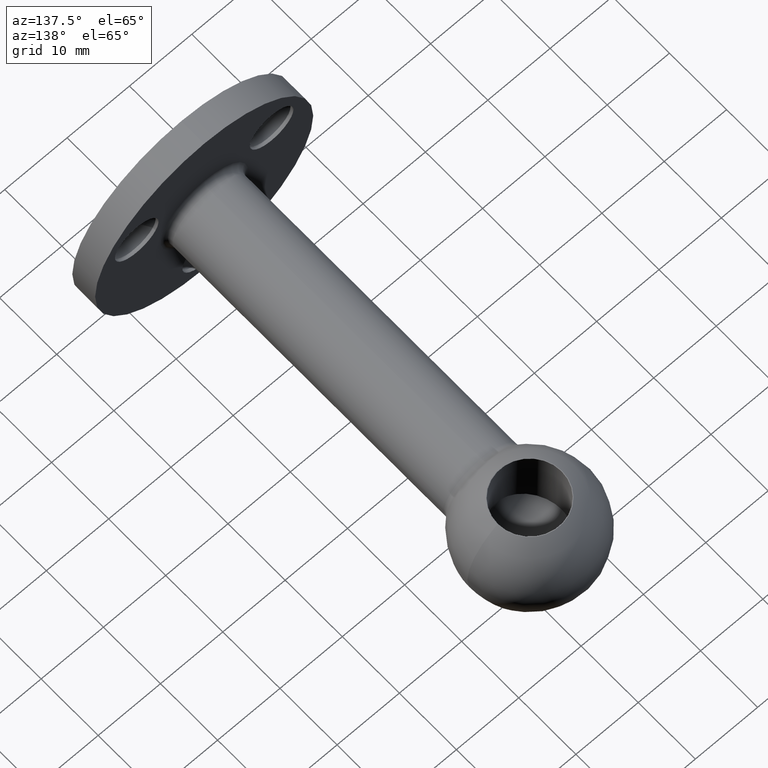
[diagram: clean part render]
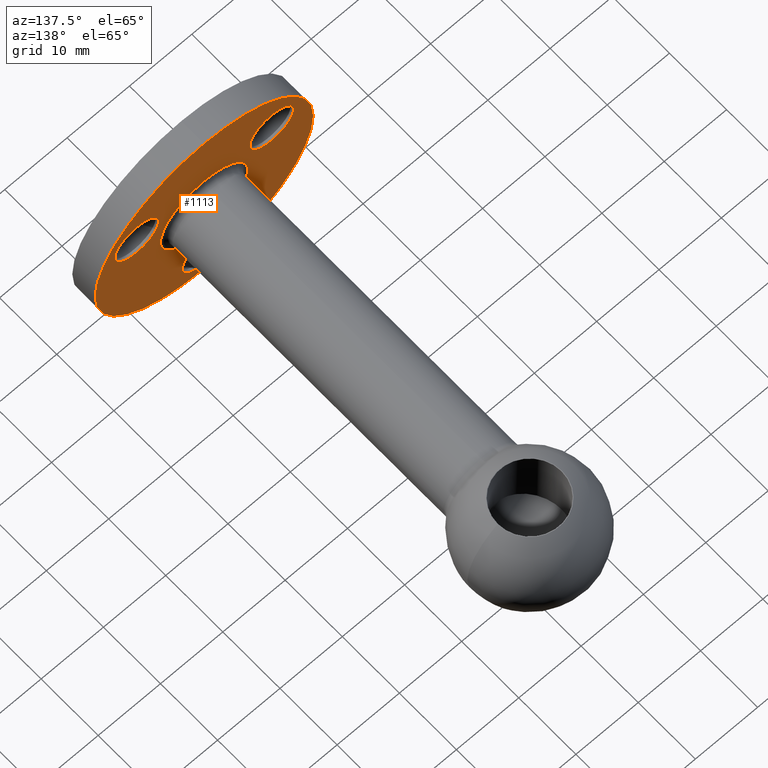
[diagram: same view with one face highlighted and labeled with its STEP entity id]
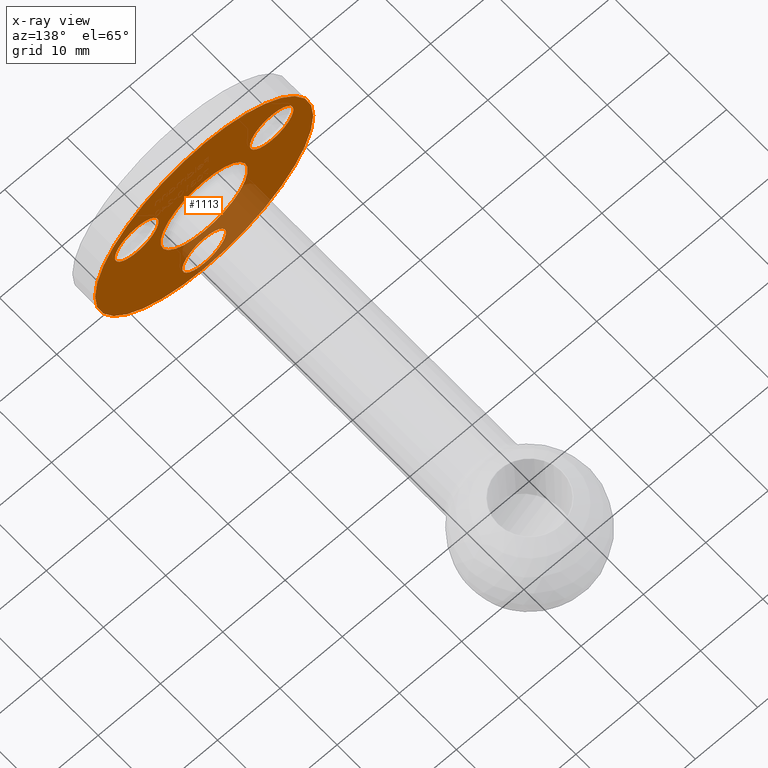
[diagram: x-ray of the same camera — body ghosted, the highlighted face saturated]
A machine part, auxiliary view. The second image highlights one B-rep face of the part: STEP entity #1113.
The next image is the same camera in x-ray: the body ghosted, the highlighted face saturated — about 14% of this face is hidden behind the body in this view.
In plain terms, the highlighted planar face has unit normal (0, 1, 0).
Its self-contained STEP definition (entity closure, byte-faithful):
#95 = EDGE_LOOP ( 'NONE', ( #10407 ) ) ;
#106 = CIRCLE ( 'NONE', #5475, 3.499999999999999556 ) ;
#228 = VERTEX_POINT ( 'NONE', #3444 ) ;
#316 = DIRECTION ( 'NONE',  ( 0.000000000000000000, 0.000000000000000000, 1.000000000000000000 ) ) ;
#371 = AXIS2_PLACEMENT_3D ( 'NONE', #4192, #2231, #9931 ) ;
#821 = CARTESIAN_POINT ( 'NONE',  ( 0.000000000000000000, 4.000000000000000000, 0.000000000000000000 ) ) ;
#1113 = ADVANCED_FACE ( 'NONE', ( #5630, #4267, #5180, #9378, #3681 ), #7183, .T. ) ;
#1514 = DIRECTION ( 'NONE',  ( 0.000000000000000000, 1.000000000000000000, 0.000000000000000000 ) ) ;
#1600 = DIRECTION ( 'NONE',  ( 0.000000000000000000, 0.000000000000000000, 1.000000000000000000 ) ) ;
#1631 = DIRECTION ( 'NONE',  ( -0.8660254037844362651, 0.000000000000000000, -0.5000000000000039968 ) ) ;
#2231 = DIRECTION ( 'NONE',  ( 0.000000000000000000, 1.000000000000000000, 0.000000000000000000 ) ) ;
#2236 = ORIENTED_EDGE ( 'NONE', *, *, #11612, .T. ) ;
#2308 = CARTESIAN_POINT ( 'NONE',  ( 0.000000000000000000, 4.000000000000000000, 0.000000000000000000 ) ) ;
#3269 = ORIENTED_EDGE ( 'NONE', *, *, #9464, .F. ) ;
#3311 = CARTESIAN_POINT ( 'NONE',  ( 0.000000000000000000, 4.000000000000000000, 7.000000000000001776 ) ) ;
#3348 = EDGE_CURVE ( 'NONE', #12404, #12404, #7267, .T. ) ;
#3444 = CARTESIAN_POINT ( 'NONE',  ( 7.794228634059929384, 4.000000000000000000, 4.500000000000037303 ) ) ;
#3446 = AXIS2_PLACEMENT_3D ( 'NONE', #7308, #1514, #6162 ) ;
#3566 = AXIS2_PLACEMENT_3D ( 'NONE', #821, #6938, #8710 ) ;
#3681 = FACE_OUTER_BOUND ( 'NONE', #95, .T. ) ;
#3867 = ORIENTED_EDGE ( 'NONE', *, *, #3348, .F. ) ;
#4138 = DIRECTION ( 'NONE',  ( -0.000000000000000000, -1.000000000000000000, -0.000000000000000000 ) ) ;
#4192 = CARTESIAN_POINT ( 'NONE',  ( -10.82531754730554141, 4.000000000000000000, 6.249999999999899636 ) ) ;
#4267 = FACE_BOUND ( 'NONE', #11314, .T. ) ;
#5033 = CARTESIAN_POINT ( 'NONE',  ( 0.000000000000000000, 4.000000000000000000, -12.50000000000000000 ) ) ;
#5174 = EDGE_LOOP ( 'NONE', ( #2236 ) ) ;
#5180 = FACE_BOUND ( 'NONE', #7453, .T. ) ;
#5255 = CARTESIAN_POINT ( 'NONE',  ( 0.000000000000000000, 4.000000000000000000, 17.50000000000000000 ) ) ;
#5382 = CARTESIAN_POINT ( 'NONE',  ( 0.000000000000000000, 4.000000000000000000, -9.000000000000001776 ) ) ;
#5475 = AXIS2_PLACEMENT_3D ( 'NONE', #5033, #7020, #316 ) ;
#5630 = FACE_BOUND ( 'NONE', #5174, .T. ) ;
#5724 = CIRCLE ( 'NONE', #3566, 17.50000000000000000 ) ;
#6162 = DIRECTION ( 'NONE',  ( 0.000000000000000000, -0.000000000000000000, 1.000000000000000000 ) ) ;
#6450 = DIRECTION ( 'NONE',  ( 0.000000000000000000, 1.000000000000000000, 0.000000000000000000 ) ) ;
#6664 = EDGE_CURVE ( 'NONE', #8518, #8518, #106, .T. ) ;
#6729 = CIRCLE ( 'NONE', #9409, 3.500000000000001332 ) ;
#6938 = DIRECTION ( 'NONE',  ( 0.000000000000000000, 1.000000000000000000, 0.000000000000000000 ) ) ;
#7020 = DIRECTION ( 'NONE',  ( -0.000000000000000000, 1.000000000000000000, -0.000000000000000000 ) ) ;
#7183 = PLANE ( 'NONE',  #3446 ) ;
#7267 = CIRCLE ( 'NONE', #371, 3.500000000000000444 ) ;
#7308 = CARTESIAN_POINT ( 'NONE',  ( 0.000000000000000000, 4.000000000000000000, 0.000000000000000000 ) ) ;
#7453 = EDGE_LOOP ( 'NONE', ( #3269 ) ) ;
#7516 = CIRCLE ( 'NONE', #7665, 7.000000000000001776 ) ;
#7665 = AXIS2_PLACEMENT_3D ( 'NONE', #2308, #4138, #1600 ) ;
#8211 = ORIENTED_EDGE ( 'NONE', *, *, #6664, .F. ) ;
#8518 = VERTEX_POINT ( 'NONE', #5382 ) ;
#8710 = DIRECTION ( 'NONE',  ( 0.000000000000000000, 0.000000000000000000, 1.000000000000000000 ) ) ;
#9112 = CARTESIAN_POINT ( 'NONE',  ( -7.794228634059990668, 4.000000000000000000, 4.499999999999928058 ) ) ;
#9378 = FACE_BOUND ( 'NONE', #11361, .T. ) ;
#9409 = AXIS2_PLACEMENT_3D ( 'NONE', #11144, #6450, #1631 ) ;
#9464 = EDGE_CURVE ( 'NONE', #228, #228, #6729, .T. ) ;
#9820 = EDGE_CURVE ( 'NONE', #11961, #11961, #5724, .T. ) ;
#9931 = DIRECTION ( 'NONE',  ( 0.8660254037844432595, 0.000000000000000000, -0.4999999999999919509 ) ) ;
#10407 = ORIENTED_EDGE ( 'NONE', *, *, #9820, .T. ) ;
#11144 = CARTESIAN_POINT ( 'NONE',  ( 10.82531754730545792, 4.000000000000000000, 6.250000000000051514 ) ) ;
#11314 = EDGE_LOOP ( 'NONE', ( #3867 ) ) ;
#11361 = EDGE_LOOP ( 'NONE', ( #8211 ) ) ;
#11612 = EDGE_CURVE ( 'NONE', #12109, #12109, #7516, .T. ) ;
#11961 = VERTEX_POINT ( 'NONE', #5255 ) ;
#12109 = VERTEX_POINT ( 'NONE', #3311 ) ;
#12404 = VERTEX_POINT ( 'NONE', #9112 ) ;